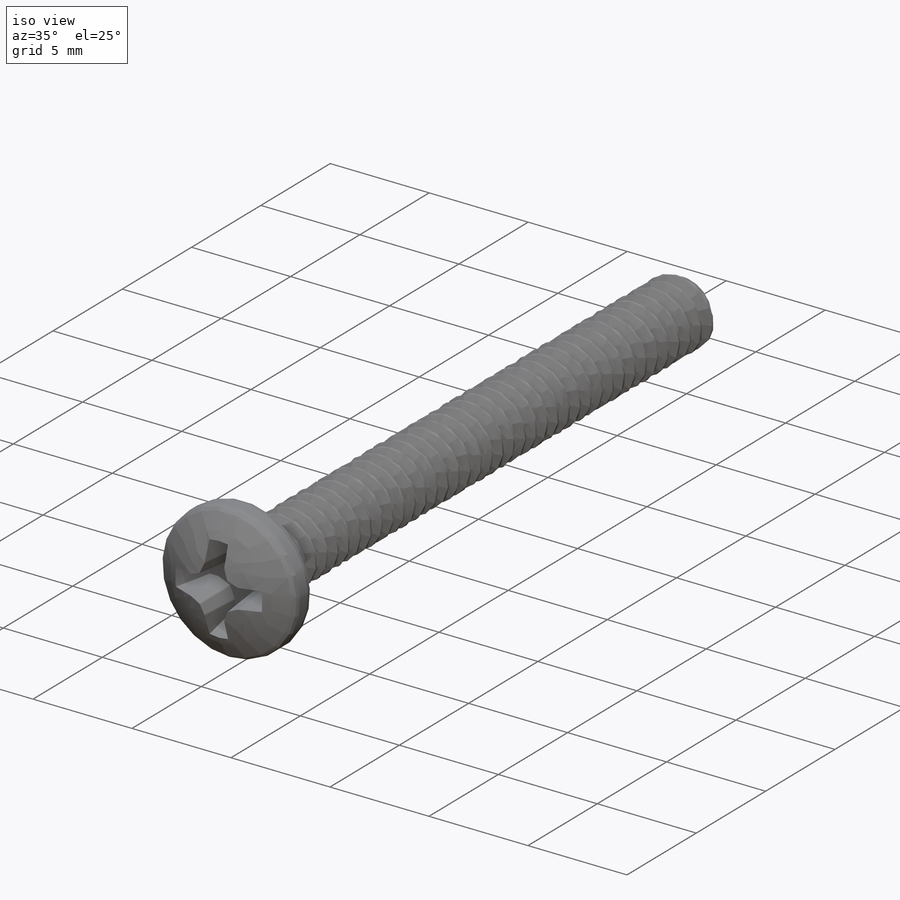
[diagram: iso view]
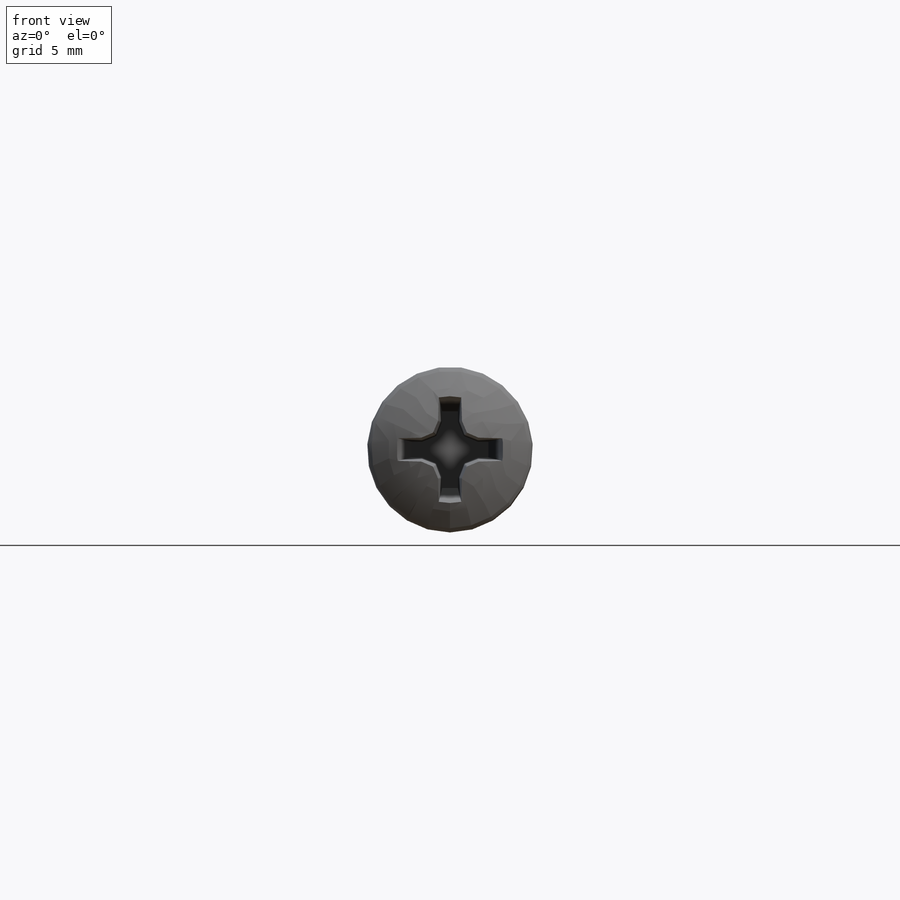
[diagram: front view]
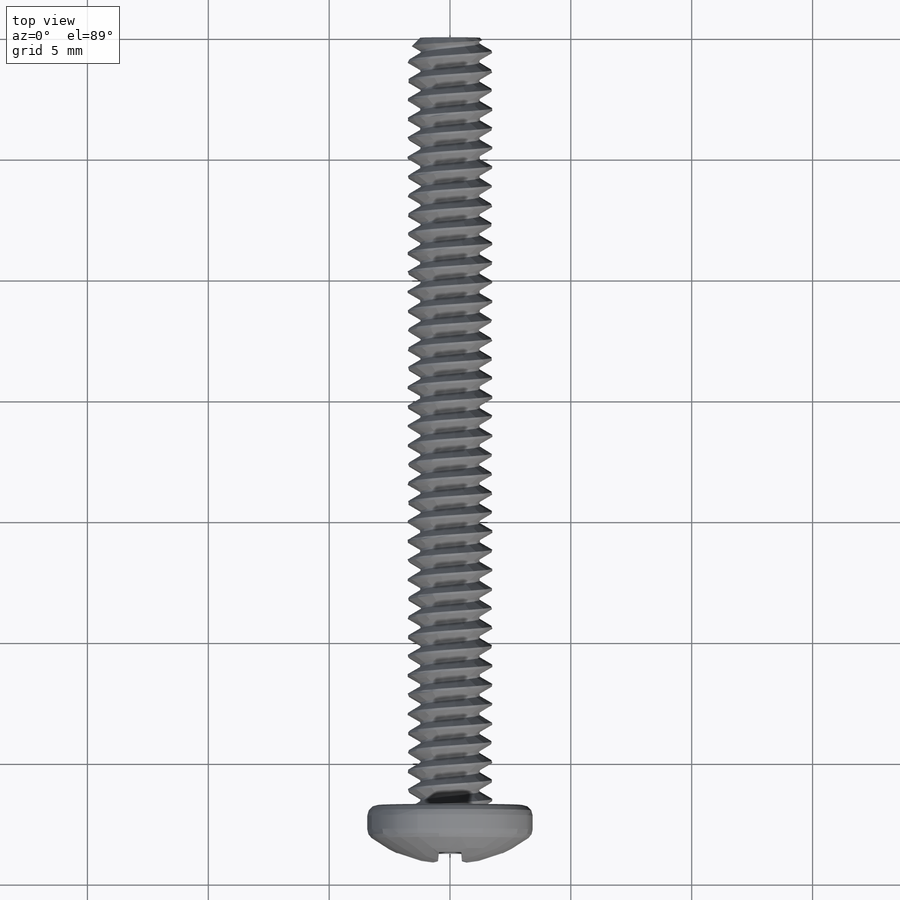
[diagram: top view]
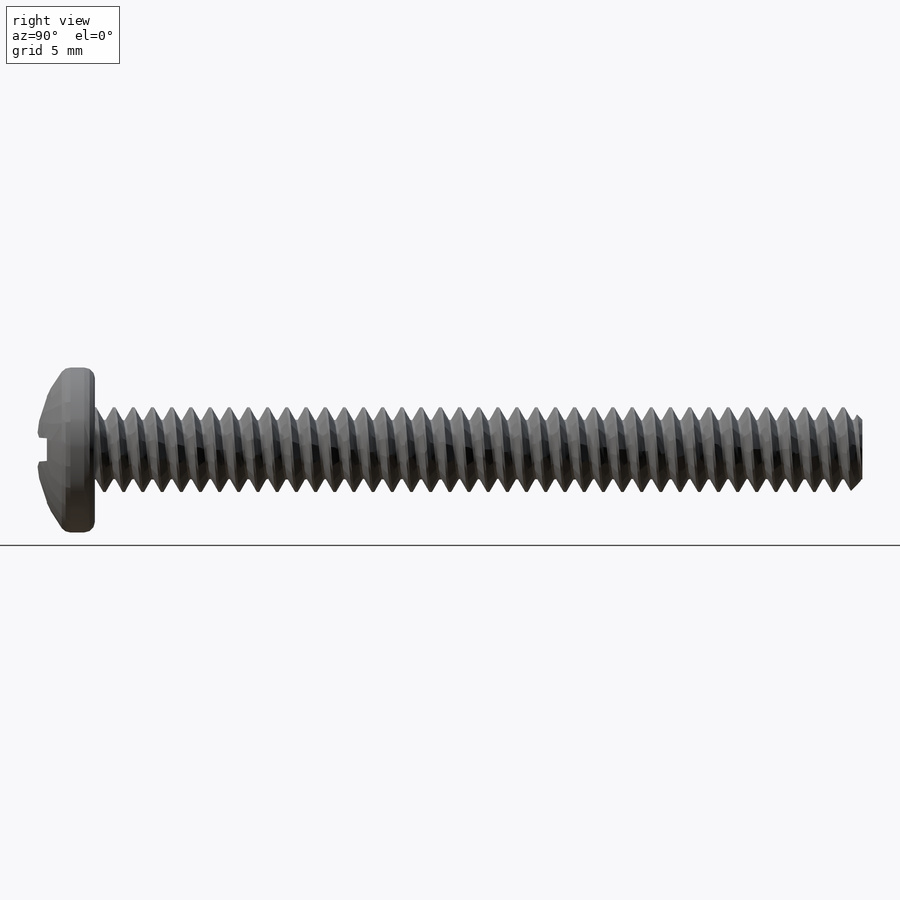
[diagram: right view]
SOLIDWORKS PART (.sldprt)
format: sldprt  version: not decoded by parser v0  size: 830,464 bytes
history: native  units: mm
features: sketch x14, cut_revolve x3, helix x2, revolve x2, sweep x2, plane x2, cut_extrude x2, material x1, pattern_circular x1, fillet x1 (+12 scaffold rows collapsed)
feature tree (42):
  scaffold x12  (default folders/planes/origin — collapsed)
  material  "Material <not specified>"
  sketch  "Sketch1"  dims[decimal equ=3.5052mm]
  helix  "Helix/Spiral1"  Pitch=32.54375mm helix length=32.54375mm pitch=0.79375mm TPI=41
  sketch  "Sketch2"  dims[c1.D1=~1.278166mm c2.D1=60.0deg c2.D2=~2.687556mm c3.D2=30.0deg c3.D3=~0.099219mm c3.D4=~0.396875mm]
  sketch  "Sketch3"  dims[length=31.75mm]
  revolve  "Revolve1"  Angle=360deg
  sweep  "Sweep1"
  sketch  "Sketch6"  dims[D1=0.0mm]
  sketch  "Sketch7"  dims[D1=0.0mm]
  helix  "Helix/Spiral2"  Pitch=0.79375mm
  sweep  "Sweep2"
  sketch  "Sketch4"  dims[c1.D1=2.54mm c1.D2=2.54mm c2.D2=45.0deg c2.D3=3.175mm]
  cut_revolve  "Cut-Revolve1"  Angle=360deg
  sketch  "Sketch10"  dims[screw length=50.8mm D1=50.8mm D2=12.7mm]
  cut_revolve  "Cut-Revolve2"  Angle=360deg
  sketch  "Sketch8"  dims[screw length=25.4mm head dia=6.858mm head height=2.4638mm D1=50.8mm]
  revolve  "Revolve2"  Angle=360deg
  sketch  "Sketch11"  dims[D1=~0.443484mm D5=0.508mm D2=0.635mm D3=0.635mm D4=0.635mm]
  cut_revolve  "Cut-Revolve3"  Angle=360deg
  sketch  "Sketch13"  dims[D1=0.0mm]
  plane  "Plane2"  Offset=0.635mm
  sketch  "Sketch14"
  plane  "Plane1"
  sketch  "Sketch12"  dims[c1.phillips dia=3.175mm c1.D2=~2.38125mm c2.D2=45.0deg c2.D3=0.508mm c2.D4=~2.38125mm c3.D4=22.5deg c3.slot width=1.016mm c3.phillips dia=4.7625mm]
  cut_extrude  "Cut-Extrude1"  Depth=2.09423mm
  cut_extrude  "Draft4"  [1 undecoded]
  pattern_circular  "CirPattern1"  Count=4 Angle=360deg
  fillet  "Fillet1"  Radius=0.1016mm
  sketch  "Sketch15"
  sketch  "Sketch16"
decode coverage: 21 of 27 modeling features carry decoded parameters
note: ~ marks probable driven/reference dimensions
note: 1 parameter value undecoded
note: suppression state not decoded; provenance and decode notes live in map.json
